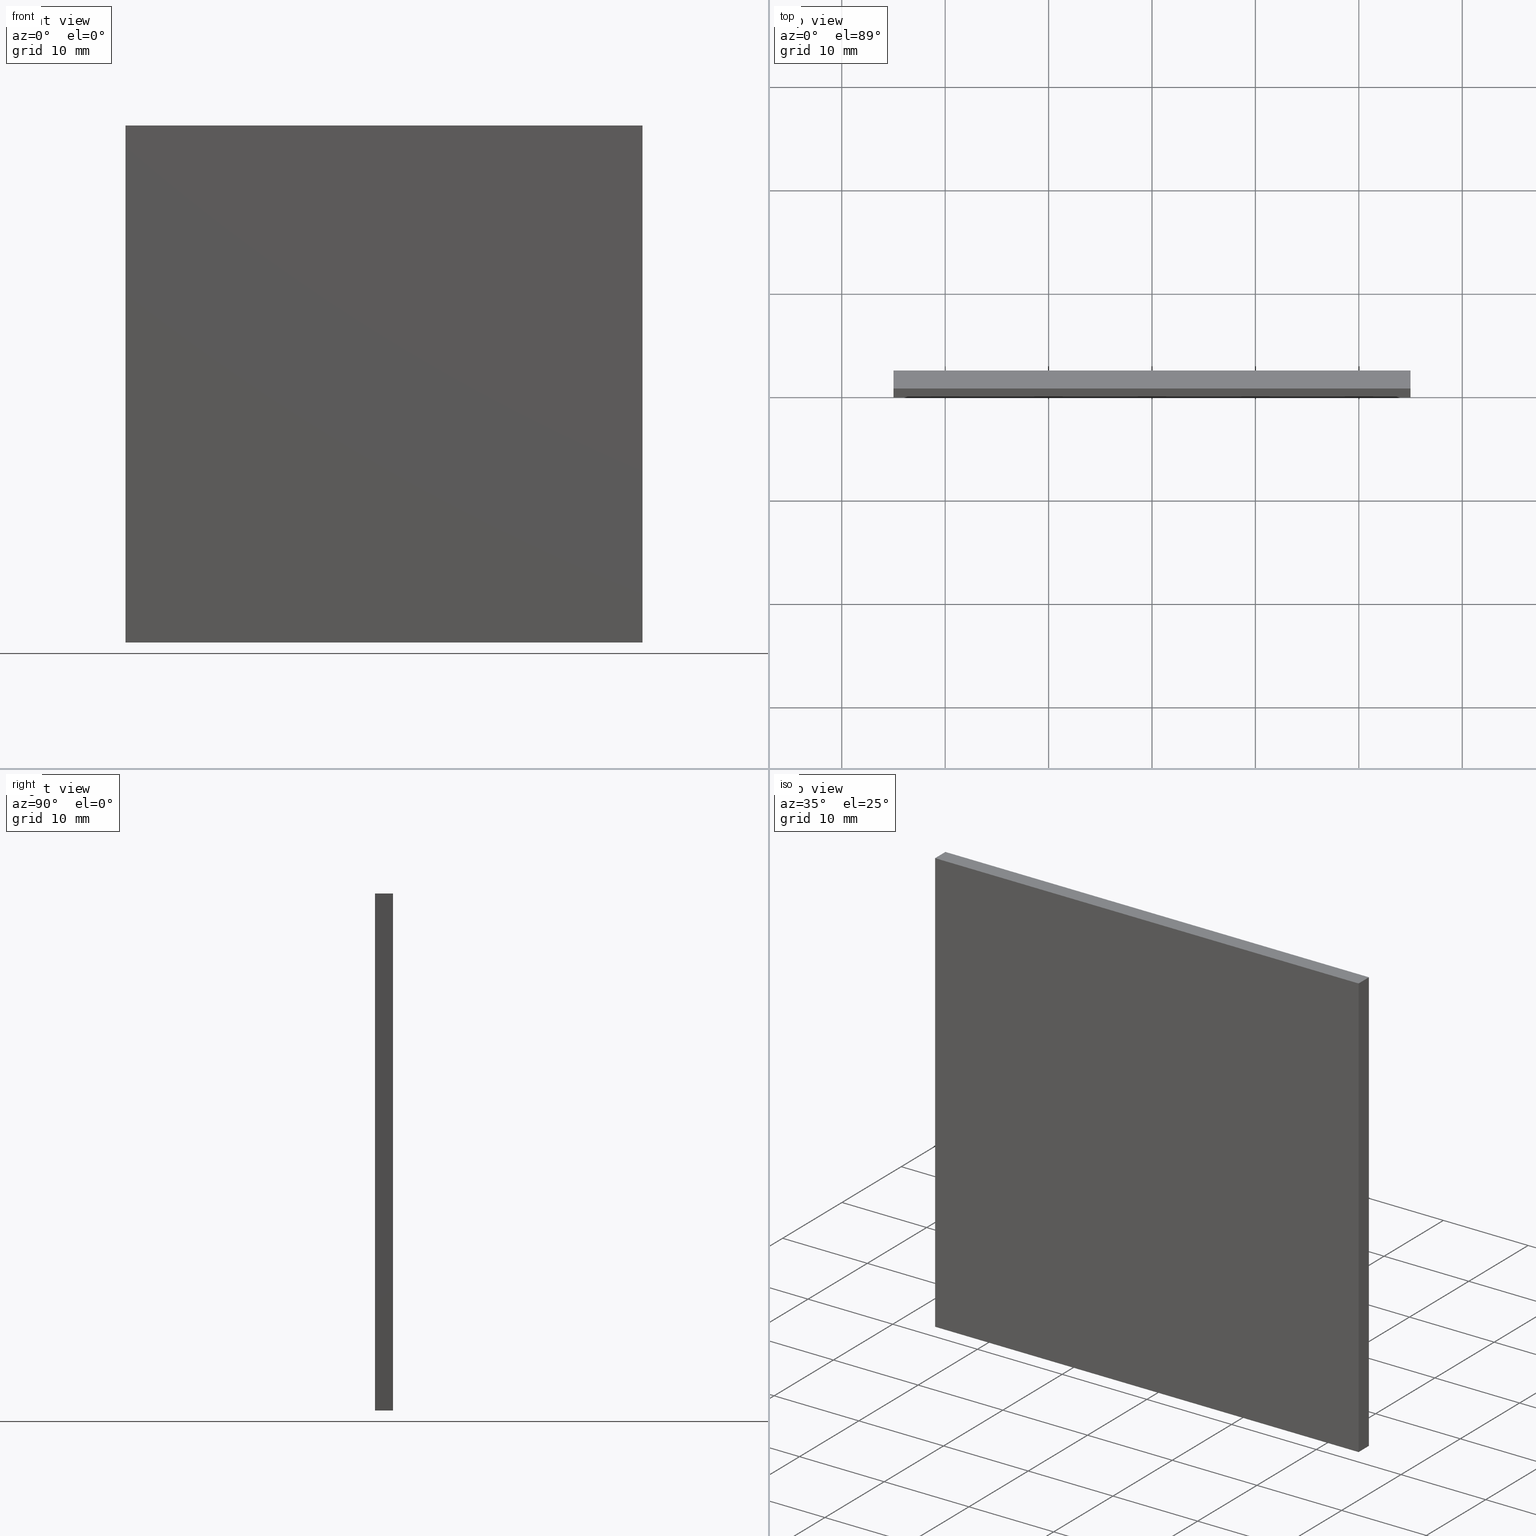
[diagram: canonical four-view strip — front | top / right | iso, engineering-drawing reading convention]
A machine part, canonical four-view strip (front | top / right | iso — engineering-drawing reading convention). The complete STEP part file that produces these views, byte-faithful:
ISO-10303-21;
HEADER;
FILE_DESCRIPTION (( 'STEP AP214' ),
    '1' );
FILE_NAME ('248613.STEP',
    '2019-08-06T06:21:00',
    ( 'user' ),
    ( '΢���й�' ),
    'SwSTEP 2.0',
    'SolidWorks 2016',
    '' );
FILE_SCHEMA (( 'AUTOMOTIVE_DESIGN' ));
ENDSEC;

DATA;
#1 = VECTOR ( 'NONE', #52, 1000.000000000000000 ) ;
#2 = ORIENTED_EDGE ( 'NONE', *, *, #32, .T. ) ;
#3 = LINE ( 'NONE', #182, #83 ) ;
#4 = CARTESIAN_POINT ( 'NONE',  ( -25.00000000000000700, 1.740000000000000000, -25.00000000000000000 ) ) ;
#5 = VERTEX_POINT ( 'NONE', #94 ) ;
#6 = PLANE ( 'NONE',  #149 ) ;
#7 = FILL_AREA_STYLE_COLOUR ( '', #36 ) ;
#8 = MECHANICAL_DESIGN_GEOMETRIC_PRESENTATION_REPRESENTATION (  '', ( #153 ), #145 ) ;
#9 = DIRECTION ( 'NONE',  ( 0.0000000000000000000, 0.0000000000000000000, 1.000000000000000000 ) ) ;
#10 = VECTOR ( 'NONE', #140, 1000.000000000000000 ) ;
#11 = STYLED_ITEM ( 'NONE', ( #23 ), #95 ) ;
#12 = DIRECTION ( 'NONE',  ( 0.0000000000000000000, 0.0000000000000000000, 1.000000000000000000 ) ) ;
#13 = DIRECTION ( 'NONE',  ( -1.000000000000000000, 0.0000000000000000000, 0.0000000000000000000 ) ) ;
#14 = VERTEX_POINT ( 'NONE', #77 ) ;
#15 = VERTEX_POINT ( 'NONE', #136 ) ;
#16 = CARTESIAN_POINT ( 'NONE',  ( -25.00000000000000700, 1.740000000000000000, 25.00000000000000000 ) ) ;
#17 = ADVANCED_FACE ( 'NONE', ( #143 ), #100, .T. ) ;
#18 = ORIENTED_EDGE ( 'NONE', *, *, #31, .T. ) ;
#19 = APPLICATION_PROTOCOL_DEFINITION ( 'draft international standard', 'automotive_design', 1998, #188 ) ;
#20 = PRODUCT ( '248613', '248613', '', ( #146 ) ) ;
#21 = ORIENTED_EDGE ( 'NONE', *, *, #67, .F. ) ;
#22 = ORIENTED_EDGE ( 'NONE', *, *, #104, .T. ) ;
#23 = PRESENTATION_STYLE_ASSIGNMENT (( #132 ) ) ;
#24 = PRODUCT_DEFINITION_SHAPE ( 'NONE', 'NONE',  #180 ) ;
#25 = MECHANICAL_DESIGN_GEOMETRIC_PRESENTATION_REPRESENTATION (  '', ( #11 ), #99 ) ;
#26 = ORIENTED_EDGE ( 'NONE', *, *, #111, .T. ) ;
#27 = ORIENTED_EDGE ( 'NONE', *, *, #93, .T. ) ;
#28 = PRODUCT_DEFINITION_CONTEXT ( 'detailed design', #87, 'design' ) ;
#29 = SURFACE_STYLE_FILL_AREA ( #85 ) ;
#30 = CARTESIAN_POINT ( 'NONE',  ( 24.99999999999999300, 1.740000000000000000, 25.00000000000000000 ) ) ;
#31 = EDGE_CURVE ( 'NONE', #165, #197, #181, .T. ) ;
#32 = EDGE_CURVE ( 'NONE', #197, #15, #44, .T. ) ;
#33 = EDGE_LOOP ( 'NONE', ( #53, #194, #21, #22 ) ) ;
#34 = ADVANCED_FACE ( 'NONE', ( #91 ), #195, .F. ) ;
#35 = PLANE ( 'NONE',  #135 ) ;
#36 = COLOUR_RGB ( '',1.000000000000000000, 1.000000000000000000, 1.000000000000000000 ) ;
#37 =( NAMED_UNIT ( * ) PLANE_ANGLE_UNIT ( ) SI_UNIT ( $, .RADIAN. ) );
#38 = FACE_OUTER_BOUND ( 'NONE', #167, .T. ) ;
#39 = CARTESIAN_POINT ( 'NONE',  ( 24.99999999999999300, 1.740000000000000000, -25.00000000000000000 ) ) ;
#40 = DIRECTION ( 'NONE',  ( -0.0000000000000000000, -0.0000000000000000000, 1.000000000000000000 ) ) ;
#41 = LINE ( 'NONE', #102, #10 ) ;
#42 = EDGE_CURVE ( 'NONE', #81, #14, #41, .T. ) ;
#43 = ORIENTED_EDGE ( 'NONE', *, *, #120, .T. ) ;
#44 = LINE ( 'NONE', #4, #178 ) ;
#45 = EDGE_CURVE ( 'NONE', #165, #185, #138, .T. ) ;
#46 = DIRECTION ( 'NONE',  ( -1.000000000000000000, 0.0000000000000000000, -0.0000000000000000000 ) ) ;
#47 = CARTESIAN_POINT ( 'NONE',  ( -25.00000000000000700, 0.0000000000000000000, 25.00000000000000000 ) ) ;
#48 = AXIS2_PLACEMENT_3D ( 'NONE', #58, #9, #51 ) ;
#49 = UNCERTAINTY_MEASURE_WITH_UNIT (LENGTH_MEASURE( 1.000000000000000100E-005 ), #148, 'distance_accuracy_value', 'NONE');
#50 = PRESENTATION_STYLE_ASSIGNMENT (( #198 ) ) ;
#51 = DIRECTION ( 'NONE',  ( 1.000000000000000000, 0.0000000000000000000, -0.0000000000000000000 ) ) ;
#52 = DIRECTION ( 'NONE',  ( 1.000000000000000000, 0.0000000000000000000, 0.0000000000000000000 ) ) ;
#53 = ORIENTED_EDGE ( 'NONE', *, *, #80, .T. ) ;
#54 =( NAMED_UNIT ( * ) SI_UNIT ( $, .STERADIAN. ) SOLID_ANGLE_UNIT ( ) );
#55 = ORIENTED_EDGE ( 'NONE', *, *, #124, .F. ) ;
#56 = PLANE ( 'NONE',  #48 ) ;
#57 = EDGE_CURVE ( 'NONE', #197, #81, #3, .T. ) ;
#58 = CARTESIAN_POINT ( 'NONE',  ( -25.00000000000000700, 1.740000000000000000, -25.00000000000000000 ) ) ;
#59 = DIRECTION ( 'NONE',  ( 0.0000000000000000000, 0.0000000000000000000, 1.000000000000000000 ) ) ;
#60 = ORIENTED_EDGE ( 'NONE', *, *, #32, .F. ) ;
#61 = FACE_OUTER_BOUND ( 'NONE', #152, .T. ) ;
#62 = ORIENTED_EDGE ( 'NONE', *, *, #42, .F. ) ;
#63 = DIRECTION ( 'NONE',  ( -1.000000000000000000, -0.0000000000000000000, -0.0000000000000000000 ) ) ;
#64 = DIRECTION ( 'NONE',  ( 0.0000000000000000000, 0.0000000000000000000, -1.000000000000000000 ) ) ;
#65 = CARTESIAN_POINT ( 'NONE',  ( 0.0000000000000000000, 1.740000000000000000, 0.0000000000000000000 ) ) ;
#66 = UNCERTAINTY_MEASURE_WITH_UNIT (LENGTH_MEASURE( 1.000000000000000100E-005 ), #73, 'distance_accuracy_value', 'NONE');
#67 = EDGE_CURVE ( 'NONE', #5, #165, #134, .T. ) ;
#68 = CARTESIAN_POINT ( 'NONE',  ( 24.99999999999999300, 1.740000000000000000, 25.00000000000000000 ) ) ;
#69 = PLANE ( 'NONE',  #139 ) ;
#70 = ORIENTED_EDGE ( 'NONE', *, *, #93, .F. ) ;
#71 = APPLICATION_PROTOCOL_DEFINITION ( 'draft international standard', 'automotive_design', 1998, #87 ) ;
#72 = COLOUR_RGB ( '',1.000000000000000000, 1.000000000000000000, 1.000000000000000000 ) ;
#73 =( LENGTH_UNIT ( ) NAMED_UNIT ( * ) SI_UNIT ( .MILLI., .METRE. ) );
#74 = SURFACE_SIDE_STYLE ('',( #29 ) ) ;
#75 = ADVANCED_FACE ( 'NONE', ( #38 ), #69, .F. ) ;
#76 = DIRECTION ( 'NONE',  ( 1.000000000000000000, 0.0000000000000000000, 0.0000000000000000000 ) ) ;
#77 = CARTESIAN_POINT ( 'NONE',  ( -25.00000000000000700, 0.0000000000000000000, -25.00000000000000000 ) ) ;
#78 = ORIENTED_EDGE ( 'NONE', *, *, #124, .T. ) ;
#79 = FACE_OUTER_BOUND ( 'NONE', #125, .T. ) ;
#80 = EDGE_CURVE ( 'NONE', #86, #185, #126, .T. ) ;
#81 = VERTEX_POINT ( 'NONE', #186 ) ;
#82 = PRODUCT_RELATED_PRODUCT_CATEGORY ( 'part', '', ( #20 ) ) ;
#83 = VECTOR ( 'NONE', #154, 1000.000000000000000 ) ;
#84 = CARTESIAN_POINT ( 'NONE',  ( 24.99999999999999300, 1.740000000000000000, 25.00000000000000000 ) ) ;
#85 = FILL_AREA_STYLE ('',( #169 ) ) ;
#86 = VERTEX_POINT ( 'NONE', #47 ) ;
#87 = APPLICATION_CONTEXT ( 'automotive_design' ) ;
#88 = CARTESIAN_POINT ( 'NONE',  ( -25.00000000000000700, 1.740000000000000000, 25.00000000000000000 ) ) ;
#89 = ADVANCED_FACE ( 'NONE', ( #79 ), #6, .F. ) ;
#90 = PRESENTATION_LAYER_ASSIGNMENT (  '', '', ( #11 ) ) ;
#91 = FACE_OUTER_BOUND ( 'NONE', #33, .T. ) ;
#92 = CARTESIAN_POINT ( 'NONE',  ( -25.00000000000000700, 1.740000000000000000, -25.00000000000000000 ) ) ;
#93 = EDGE_CURVE ( 'NONE', #15, #5, #162, .T. ) ;
#94 = CARTESIAN_POINT ( 'NONE',  ( -25.00000000000000700, 1.740000000000000000, 25.00000000000000000 ) ) ;
#95 = MANIFOLD_SOLID_BREP ( '͹̨-����1', #119 ) ;
#96 =( NAMED_UNIT ( * ) SI_UNIT ( $, .STERADIAN. ) SOLID_ANGLE_UNIT ( ) );
#97 = DIRECTION ( 'NONE',  ( -0.0000000000000000000, -1.000000000000000000, -0.0000000000000000000 ) ) ;
#98 = VECTOR ( 'NONE', #64, 1000.000000000000000 ) ;
#99 =( GEOMETRIC_REPRESENTATION_CONTEXT ( 3 ) GLOBAL_UNCERTAINTY_ASSIGNED_CONTEXT ( ( #66 ) ) GLOBAL_UNIT_ASSIGNED_CONTEXT ( ( #73, #106, #96 ) ) REPRESENTATION_CONTEXT ( 'NONE', 'WORKASPACE' ) );
#100 = PLANE ( 'NONE',  #155 ) ;
#101 = ORIENTED_EDGE ( 'NONE', *, *, #104, .F. ) ;
#102 = CARTESIAN_POINT ( 'NONE',  ( -25.00000000000000700, 0.0000000000000000000, -25.00000000000000000 ) ) ;
#103 = DIRECTION ( 'NONE',  ( 0.0000000000000000000, 0.0000000000000000000, -1.000000000000000000 ) ) ;
#104 = EDGE_CURVE ( 'NONE', #5, #86, #151, .T. ) ;
#105 = CARTESIAN_POINT ( 'NONE',  ( 24.99999999999999300, 0.0000000000000000000, 25.00000000000000000 ) ) ;
#106 =( NAMED_UNIT ( * ) PLANE_ANGLE_UNIT ( ) SI_UNIT ( $, .RADIAN. ) );
#107 = VECTOR ( 'NONE', #97, 1000.000000000000000 ) ;
#108 = CARTESIAN_POINT ( 'NONE',  ( -25.00000000000000700, 1.740000000000000000, 25.00000000000000000 ) ) ;
#109 = ORIENTED_EDGE ( 'NONE', *, *, #67, .T. ) ;
#110 = DIRECTION ( 'NONE',  ( 1.000000000000000000, -0.0000000000000000000, 0.0000000000000000000 ) ) ;
#111 = EDGE_CURVE ( 'NONE', #185, #81, #190, .T. ) ;
#112 = DIRECTION ( 'NONE',  ( 1.000000000000000000, 0.0000000000000000000, 0.0000000000000000000 ) ) ;
#113 =( LENGTH_UNIT ( ) NAMED_UNIT ( * ) SI_UNIT ( .MILLI., .METRE. ) );
#114 = VECTOR ( 'NONE', #128, 1000.000000000000000 ) ;
#115 = CARTESIAN_POINT ( 'NONE',  ( 0.0000000000000000000, 0.0000000000000000000, 0.0000000000000000000 ) ) ;
#116 = ORIENTED_EDGE ( 'NONE', *, *, #57, .F. ) ;
#117 = CARTESIAN_POINT ( 'NONE',  ( -25.00000000000000700, 0.0000000000000000000, 25.00000000000000000 ) ) ;
#118 = DIRECTION ( 'NONE',  ( 0.0000000000000000000, 0.0000000000000000000, -1.000000000000000000 ) ) ;
#119 = CLOSED_SHELL ( 'NONE', ( #75, #183, #187, #34, #89, #17 ) ) ;
#120 = EDGE_CURVE ( 'NONE', #14, #86, #196, .T. ) ;
#121 = ORIENTED_EDGE ( 'NONE', *, *, #111, .F. ) ;
#122 =( GEOMETRIC_REPRESENTATION_CONTEXT ( 3 ) GLOBAL_UNCERTAINTY_ASSIGNED_CONTEXT ( ( #49 ) ) GLOBAL_UNIT_ASSIGNED_CONTEXT ( ( #148, #133, #160 ) ) REPRESENTATION_CONTEXT ( 'NONE', 'WORKASPACE' ) );
#123 = CARTESIAN_POINT ( 'NONE',  ( -25.00000000000000700, 1.740000000000000000, 25.00000000000000000 ) ) ;
#124 = EDGE_CURVE ( 'NONE', #15, #14, #137, .T. ) ;
#125 = EDGE_LOOP ( 'NONE', ( #18, #2, #27, #109 ) ) ;
#126 = LINE ( 'NONE', #127, #168 ) ;
#127 = CARTESIAN_POINT ( 'NONE',  ( -25.00000000000000700, 0.0000000000000000000, 25.00000000000000000 ) ) ;
#128 = DIRECTION ( 'NONE',  ( 0.0000000000000000000, 0.0000000000000000000, -1.000000000000000000 ) ) ;
#129 = DIRECTION ( 'NONE',  ( -0.0000000000000000000, -1.000000000000000000, -0.0000000000000000000 ) ) ;
#130 = ORIENTED_EDGE ( 'NONE', *, *, #80, .F. ) ;
#131 = SURFACE_STYLE_FILL_AREA ( #202 ) ;
#132 = SURFACE_STYLE_USAGE ( .BOTH. , #74 ) ;
#133 =( NAMED_UNIT ( * ) PLANE_ANGLE_UNIT ( ) SI_UNIT ( $, .RADIAN. ) );
#134 = LINE ( 'NONE', #16, #1 ) ;
#135 = AXIS2_PLACEMENT_3D ( 'NONE', #88, #110, #118 ) ;
#136 = CARTESIAN_POINT ( 'NONE',  ( -25.00000000000000700, 1.740000000000000000, -25.00000000000000000 ) ) ;
#137 = LINE ( 'NONE', #92, #107 ) ;
#138 = LINE ( 'NONE', #84, #173 ) ;
#139 = AXIS2_PLACEMENT_3D ( 'NONE', #68, #13, #12 ) ;
#140 = DIRECTION ( 'NONE',  ( -1.000000000000000000, -0.0000000000000000000, -0.0000000000000000000 ) ) ;
#141 = DIRECTION ( 'NONE',  ( -0.0000000000000000000, -0.0000000000000000000, 1.000000000000000000 ) ) ;
#142 = SHAPE_DEFINITION_REPRESENTATION ( #24, #170 ) ;
#143 = FACE_OUTER_BOUND ( 'NONE', #158, .T. ) ;
#144 = AXIS2_PLACEMENT_3D ( 'NONE', #123, #103, #46 ) ;
#145 =( GEOMETRIC_REPRESENTATION_CONTEXT ( 3 ) GLOBAL_UNCERTAINTY_ASSIGNED_CONTEXT ( ( #200 ) ) GLOBAL_UNIT_ASSIGNED_CONTEXT ( ( #113, #37, #54 ) ) REPRESENTATION_CONTEXT ( 'NONE', 'WORKASPACE' ) );
#146 = PRODUCT_CONTEXT ( 'NONE', #188, 'mechanical' ) ;
#147 = ORIENTED_EDGE ( 'NONE', *, *, #120, .F. ) ;
#148 =( LENGTH_UNIT ( ) NAMED_UNIT ( * ) SI_UNIT ( .MILLI., .METRE. ) );
#149 = AXIS2_PLACEMENT_3D ( 'NONE', #65, #159, #174 ) ;
#150 = DIRECTION ( 'NONE',  ( 0.0000000000000000000, -1.000000000000000000, 0.0000000000000000000 ) ) ;
#151 = LINE ( 'NONE', #108, #164 ) ;
#152 = EDGE_LOOP ( 'NONE', ( #43, #101, #70, #78 ) ) ;
#153 = STYLED_ITEM ( 'NONE', ( #50 ), #170 ) ;
#154 = DIRECTION ( 'NONE',  ( -0.0000000000000000000, -1.000000000000000000, -0.0000000000000000000 ) ) ;
#155 = AXIS2_PLACEMENT_3D ( 'NONE', #115, #150, #175 ) ;
#156 = VECTOR ( 'NONE', #141, 1000.000000000000000 ) ;
#157 = CARTESIAN_POINT ( 'NONE',  ( 0.0000000000000000000, 0.0000000000000000000, 0.0000000000000000000 ) ) ;
#158 = EDGE_LOOP ( 'NONE', ( #121, #130, #147, #62 ) ) ;
#159 = DIRECTION ( 'NONE',  ( 0.0000000000000000000, -1.000000000000000000, 0.0000000000000000000 ) ) ;
#160 =( NAMED_UNIT ( * ) SI_UNIT ( $, .STERADIAN. ) SOLID_ANGLE_UNIT ( ) );
#161 = ORIENTED_EDGE ( 'NONE', *, *, #57, .T. ) ;
#162 = LINE ( 'NONE', #172, #199 ) ;
#163 = PRESENTATION_LAYER_ASSIGNMENT (  '', '', ( #153 ) ) ;
#164 = VECTOR ( 'NONE', #129, 1000.000000000000000 ) ;
#165 = VERTEX_POINT ( 'NONE', #177 ) ;
#166 = AXIS2_PLACEMENT_3D ( 'NONE', #157, #59, #76 ) ;
#167 = EDGE_LOOP ( 'NONE', ( #26, #116, #193, #191 ) ) ;
#168 = VECTOR ( 'NONE', #112, 1000.000000000000000 ) ;
#169 = FILL_AREA_STYLE_COLOUR ( '', #72 ) ;
#170 = ADVANCED_BREP_SHAPE_REPRESENTATION ( '248613', ( #95, #166 ), #122 ) ;
#171 = EDGE_LOOP ( 'NONE', ( #176, #55, #60, #161 ) ) ;
#172 = CARTESIAN_POINT ( 'NONE',  ( -25.00000000000000700, 1.740000000000000000, 25.00000000000000000 ) ) ;
#173 = VECTOR ( 'NONE', #184, 1000.000000000000000 ) ;
#174 = DIRECTION ( 'NONE',  ( 0.0000000000000000000, -0.0000000000000000000, -1.000000000000000000 ) ) ;
#175 = DIRECTION ( 'NONE',  ( 0.0000000000000000000, -0.0000000000000000000, -1.000000000000000000 ) ) ;
#176 = ORIENTED_EDGE ( 'NONE', *, *, #42, .T. ) ;
#177 = CARTESIAN_POINT ( 'NONE',  ( 24.99999999999999300, 1.740000000000000000, 25.00000000000000000 ) ) ;
#178 = VECTOR ( 'NONE', #63, 1000.000000000000000 ) ;
#179 = FACE_OUTER_BOUND ( 'NONE', #171, .T. ) ;
#180 = PRODUCT_DEFINITION ( 'δ֪', '', #192, #28 ) ;
#181 = LINE ( 'NONE', #30, #98 ) ;
#182 = CARTESIAN_POINT ( 'NONE',  ( 24.99999999999999300, 1.740000000000000000, -25.00000000000000000 ) ) ;
#183 = ADVANCED_FACE ( 'NONE', ( #179 ), #56, .F. ) ;
#184 = DIRECTION ( 'NONE',  ( -0.0000000000000000000, -1.000000000000000000, -0.0000000000000000000 ) ) ;
#185 = VERTEX_POINT ( 'NONE', #105 ) ;
#186 = CARTESIAN_POINT ( 'NONE',  ( 24.99999999999999300, 0.0000000000000000000, -25.00000000000000000 ) ) ;
#187 = ADVANCED_FACE ( 'NONE', ( #61 ), #35, .F. ) ;
#188 = APPLICATION_CONTEXT ( 'automotive_design' ) ;
#189 = CARTESIAN_POINT ( 'NONE',  ( 24.99999999999999300, 0.0000000000000000000, 25.00000000000000000 ) ) ;
#190 = LINE ( 'NONE', #189, #114 ) ;
#191 = ORIENTED_EDGE ( 'NONE', *, *, #45, .T. ) ;
#192 = PRODUCT_DEFINITION_FORMATION_WITH_SPECIFIED_SOURCE ( '�κ�', '', #20, .NOT_KNOWN. ) ;
#193 = ORIENTED_EDGE ( 'NONE', *, *, #31, .F. ) ;
#194 = ORIENTED_EDGE ( 'NONE', *, *, #45, .F. ) ;
#195 = PLANE ( 'NONE',  #144 ) ;
#196 = LINE ( 'NONE', #117, #156 ) ;
#197 = VERTEX_POINT ( 'NONE', #39 ) ;
#198 = SURFACE_STYLE_USAGE ( .BOTH. , #201 ) ;
#199 = VECTOR ( 'NONE', #40, 1000.000000000000000 ) ;
#200 = UNCERTAINTY_MEASURE_WITH_UNIT (LENGTH_MEASURE( 1.000000000000000100E-005 ), #113, 'distance_accuracy_value', 'NONE');
#201 = SURFACE_SIDE_STYLE ('',( #131 ) ) ;
#202 = FILL_AREA_STYLE ('',( #7 ) ) ;
ENDSEC;
END-ISO-10303-21;
